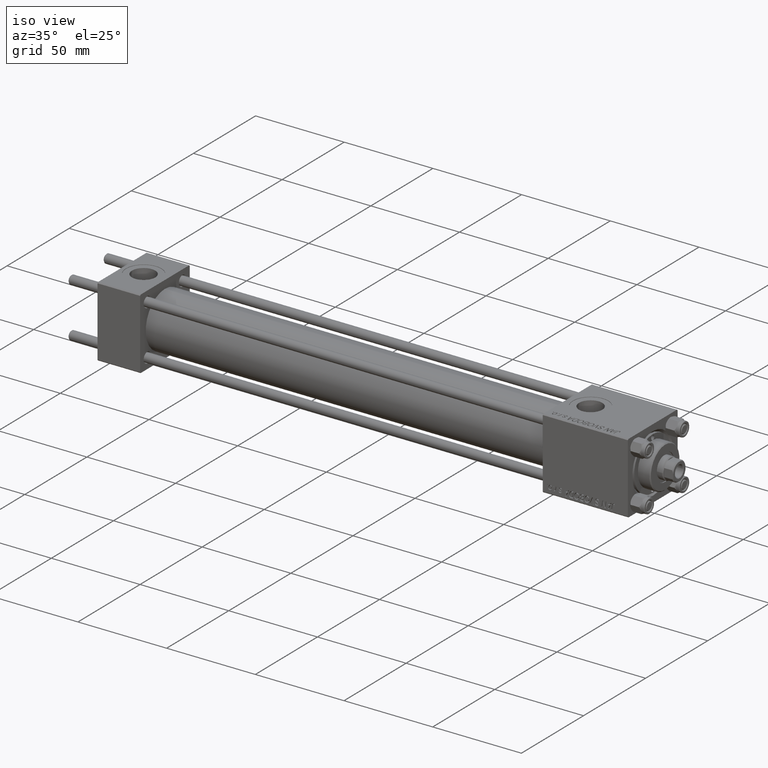
[diagram: clean part render]
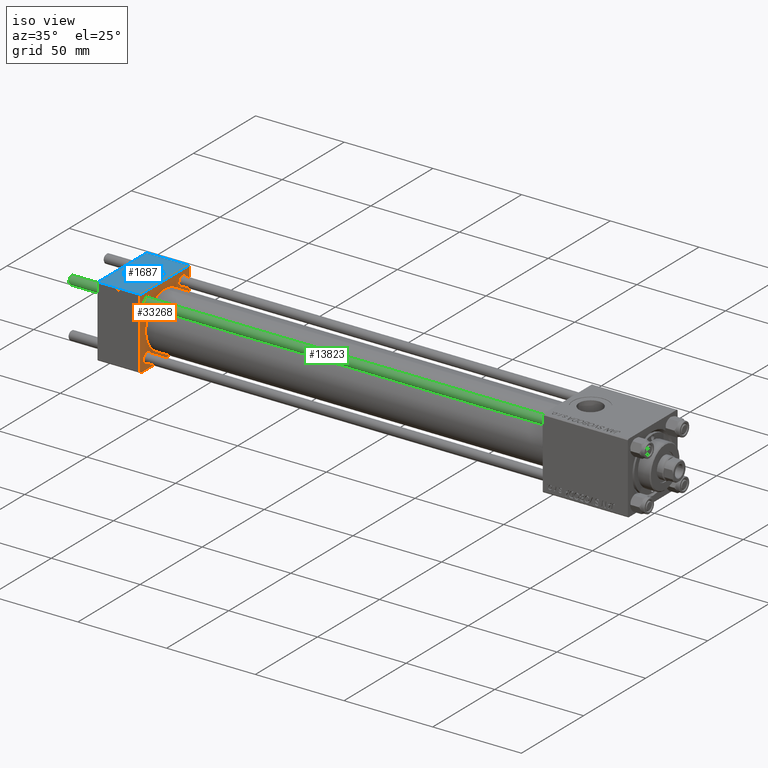
[diagram: same view with three faces highlighted in distinct colors, each labeled with its STEP entity id]
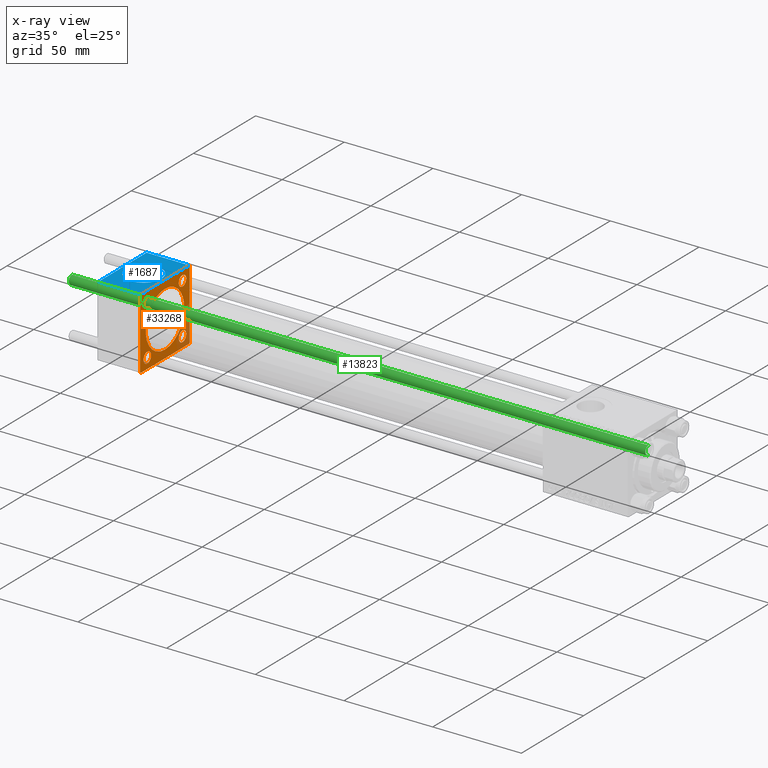
[diagram: x-ray of the same camera — body ghosted, the three highlighted faces saturated]
A machine part, iso view with three faces highlighted in distinct colors.
The next image is the same camera in x-ray (body ghosted, the three faces saturated) — at least one of them is partly hidden behind the body in this view.
Their STEP definitions:

[orange] entity #33268 — the highlighted planar face has unit normal (-1, 0, 0).
#960 = VERTEX_POINT ( 'NONE', #18807 ) ;
#989 = CARTESIAN_POINT ( 'NONE',  ( 24.00000000000000000, -14.14999999999999503, 17.15000000000008740 ) ) ;
#1058 = EDGE_CURVE ( 'NONE', #48217, #2595, #15009, .T. ) ;
#1263 = CARTESIAN_POINT ( 'NONE',  ( 24.00000000000000000, -14.14999999999999503, -14.15000000000000391 ) ) ;
#1504 = ORIENTED_EDGE ( 'NONE', *, *, #5475, .T. ) ;
#1520 = ORIENTED_EDGE ( 'NONE', *, *, #27999, .F. ) ;
#1533 = VERTEX_POINT ( 'NONE', #44206 ) ;
#1611 = CIRCLE ( 'NONE', #2422, 3.000000000000059952 ) ;
#1627 = CARTESIAN_POINT ( 'NONE',  ( 24.00000000000000000, -20.00000000000000355, 19.49999999999998224 ) ) ;
#1910 = VERTEX_POINT ( 'NONE', #20168 ) ;
#2059 = CARTESIAN_POINT ( 'NONE',  ( 23.99999999999999289, 0.000000000000000000, 15.50000000000000000 ) ) ;
#2181 = CARTESIAN_POINT ( 'NONE',  ( 24.00000000000000000, 19.50000000000000000, 20.00000000000000000 ) ) ;
#2352 = CIRCLE ( 'NONE', #41074, 3.000000000000084377 ) ;
#2395 = EDGE_CURVE ( 'NONE', #16699, #1533, #13733, .T. ) ;
#2422 = AXIS2_PLACEMENT_3D ( 'NONE', #11645, #42715, #43210 ) ;
#2595 = VERTEX_POINT ( 'NONE', #36316 ) ;
#3125 = CARTESIAN_POINT ( 'NONE',  ( 24.00000000000000000, 19.50000000000000000, 20.00000000000000000 ) ) ;
#3175 = AXIS2_PLACEMENT_3D ( 'NONE', #23337, #41785, #46066 ) ;
#3371 = DIRECTION ( 'NONE',  ( 0.000000000000000000, 0.000000000000000000, 1.000000000000000000 ) ) ;
#3982 = CARTESIAN_POINT ( 'NONE',  ( 24.00000000000000000, -20.00000000000000355, 19.99999999999998934 ) ) ;
#4370 = CARTESIAN_POINT ( 'NONE',  ( 24.00000000000000000, -20.00000000000000355, 19.49999999999998224 ) ) ;
#4435 = ORIENTED_EDGE ( 'NONE', *, *, #38975, .F. ) ;
#4995 = EDGE_LOOP ( 'NONE', ( #18812, #40933 ) ) ;
#5025 = CARTESIAN_POINT ( 'NONE',  ( 24.00000000000000000, -14.14999999999999503, 14.15000000000000391 ) ) ;
#5130 = ORIENTED_EDGE ( 'NONE', *, *, #17847, .T. ) ;
#5475 = EDGE_CURVE ( 'NONE', #13818, #14778, #23338, .T. ) ;
#5774 = EDGE_CURVE ( 'NONE', #1533, #16699, #1611, .T. ) ;
#5798 = DIRECTION ( 'NONE',  ( -1.000000000000000000, -0.000000000000000000, -0.000000000000000000 ) ) ;
#7448 = DIRECTION ( 'NONE',  ( 0.000000000000000000, 0.000000000000000000, 1.000000000000000000 ) ) ;
#7823 = FACE_BOUND ( 'NONE', #27897, .T. ) ;
#8228 = VECTOR ( 'NONE', #14100, 1000.000000000000000 ) ;
#8294 = DIRECTION ( 'NONE',  ( 0.000000000000000000, -1.000000000000000000, -2.602085213965210149E-16 ) ) ;
#8366 = AXIS2_PLACEMENT_3D ( 'NONE', #45846, #45349, #7448 ) ;
#8536 = LINE ( 'NONE', #46702, #18203 ) ;
#8733 = CARTESIAN_POINT ( 'NONE',  ( 24.00000000000000000, 20.00000000000000000, 20.00000000000000000 ) ) ;
#8767 = ORIENTED_EDGE ( 'NONE', *, *, #42547, .T. ) ;
#8823 = DIRECTION ( 'NONE',  ( -1.000000000000000000, -0.000000000000000000, -0.000000000000000000 ) ) ;
#9278 = LINE ( 'NONE', #36318, #28826 ) ;
#9615 = VERTEX_POINT ( 'NONE', #24837 ) ;
#10064 = CARTESIAN_POINT ( 'NONE',  ( 24.00000000000000000, 20.00000000000000000, -19.50000000000002132 ) ) ;
#10149 = VERTEX_POINT ( 'NONE', #989 ) ;
#10159 = ORIENTED_EDGE ( 'NONE', *, *, #1058, .T. ) ;
#10874 = FACE_BOUND ( 'NONE', #4995, .T. ) ;
#11124 = EDGE_CURVE ( 'NONE', #31600, #38091, #25233, .T. ) ;
#11217 = ORIENTED_EDGE ( 'NONE', *, *, #42232, .T. ) ;
#11645 = CARTESIAN_POINT ( 'NONE',  ( 24.00000000000000000, 14.14999999999999858, 14.15000000000000036 ) ) ;
#12724 = CIRCLE ( 'NONE', #19200, 15.50000000000000000 ) ;
#12798 = CARTESIAN_POINT ( 'NONE',  ( 24.00000000000000000, 14.14999999999999858, -14.15000000000000036 ) ) ;
#13590 = VERTEX_POINT ( 'NONE', #2181 ) ;
#13654 = CARTESIAN_POINT ( 'NONE',  ( 24.00000000000000000, -14.14999999999999503, 14.15000000000000391 ) ) ;
#13733 = CIRCLE ( 'NONE', #41991, 3.000000000000059952 ) ;
#13818 = VERTEX_POINT ( 'NONE', #45485 ) ;
#14100 = DIRECTION ( 'NONE',  ( -0.000000000000000000, 0.7071067811865524577, 0.7071067811865426878 ) ) ;
#14147 = ORIENTED_EDGE ( 'NONE', *, *, #36417, .T. ) ;
#14778 = VERTEX_POINT ( 'NONE', #1627 ) ;
#14812 = ORIENTED_EDGE ( 'NONE', *, *, #5774, .T. ) ;
#15009 = LINE ( 'NONE', #30675, #15139 ) ;
#15139 = VECTOR ( 'NONE', #30421, 1000.000000000000000 ) ;
#15207 = CIRCLE ( 'NONE', #44226, 3.000000000000084377 ) ;
#15641 = CIRCLE ( 'NONE', #8366, 15.50000000000000000 ) ;
#15843 = LINE ( 'NONE', #3982, #18858 ) ;
#15954 = EDGE_CURVE ( 'NONE', #48958, #21965, #15641, .T. ) ;
#16568 = CARTESIAN_POINT ( 'NONE',  ( 23.99999999999999289, 0.000000000000000000, 0.000000000000000000 ) ) ;
#16699 = VERTEX_POINT ( 'NONE', #27770 ) ;
#17816 = DIRECTION ( 'NONE',  ( 1.000000000000000000, 0.000000000000000000, 0.000000000000000000 ) ) ;
#17847 = EDGE_CURVE ( 'NONE', #14778, #48217, #15843, .T. ) ;
#17981 = CARTESIAN_POINT ( 'NONE',  ( 24.00000000000000000, 20.00000000000000000, 19.49999999999999289 ) ) ;
#18203 = VECTOR ( 'NONE', #8294, 1000.000000000000000 ) ;
#18452 = DIRECTION ( 'NONE',  ( -1.000000000000000000, -0.000000000000000000, -0.000000000000000000 ) ) ;
#18682 = EDGE_CURVE ( 'NONE', #26716, #38091, #31730, .T. ) ;
#18807 = CARTESIAN_POINT ( 'NONE',  ( 24.00000000000000000, -14.14999999999999503, 11.14999999999992042 ) ) ;
#18812 = ORIENTED_EDGE ( 'NONE', *, *, #25133, .T. ) ;
#18858 = VECTOR ( 'NONE', #34303, 1000.000000000000000 ) ;
#19200 = AXIS2_PLACEMENT_3D ( 'NONE', #16568, #17816, #44336 ) ;
#19937 = EDGE_CURVE ( 'NONE', #1910, #27167, #38266, .T. ) ;
#20168 = CARTESIAN_POINT ( 'NONE',  ( 24.00000000000000000, 14.14999999999999858, -11.14999999999994351 ) ) ;
#20437 = DIRECTION ( 'NONE',  ( -1.000000000000000000, -0.000000000000000000, -0.000000000000000000 ) ) ;
#20949 = CIRCLE ( 'NONE', #3175, 3.000000000000084377 ) ;
#21212 = DIRECTION ( 'NONE',  ( 0.000000000000000000, 0.000000000000000000, 1.000000000000000000 ) ) ;
#21965 = VERTEX_POINT ( 'NONE', #30920 ) ;
#22260 = DIRECTION ( 'NONE',  ( -1.000000000000000000, 0.000000000000000000, -0.000000000000000000 ) ) ;
#22450 = EDGE_LOOP ( 'NONE', ( #26909, #14812 ) ) ;
#22511 = FACE_BOUND ( 'NONE', #37964, .T. ) ;
#22522 = CARTESIAN_POINT ( 'NONE',  ( 24.00000000000000000, -14.14999999999999503, -11.14999999999992042 ) ) ;
#22931 = AXIS2_PLACEMENT_3D ( 'NONE', #48334, #45794, #3371 ) ;
#23008 = FACE_BOUND ( 'NONE', #34772, .T. ) ;
#23256 = FACE_OUTER_BOUND ( 'NONE', #48143, .T. ) ;
#23337 = CARTESIAN_POINT ( 'NONE',  ( 24.00000000000000000, -14.14999999999999503, -14.15000000000000391 ) ) ;
#23338 = LINE ( 'NONE', #4370, #28231 ) ;
#23421 = EDGE_CURVE ( 'NONE', #13590, #13818, #8536, .T. ) ;
#24008 = DIRECTION ( 'NONE',  ( 0.000000000000000000, 0.000000000000000000, 1.000000000000000000 ) ) ;
#24179 = DIRECTION ( 'NONE',  ( 0.000000000000000000, 0.000000000000000000, 1.000000000000000000 ) ) ;
#24837 = CARTESIAN_POINT ( 'NONE',  ( 24.00000000000000000, -14.14999999999999503, -17.15000000000008740 ) ) ;
#25013 = CARTESIAN_POINT ( 'NONE',  ( 24.00000000000000000, 14.14999999999999858, 14.15000000000000036 ) ) ;
#25133 = EDGE_CURVE ( 'NONE', #27167, #1910, #48906, .T. ) ;
#25233 = LINE ( 'NONE', #10064, #8228 ) ;
#26506 = CARTESIAN_POINT ( 'NONE',  ( 24.00000000000000000, 14.14999999999999858, -17.15000000000006253 ) ) ;
#26555 = PLANE ( 'NONE',  #39174 ) ;
#26716 = VERTEX_POINT ( 'NONE', #17981 ) ;
#26909 = ORIENTED_EDGE ( 'NONE', *, *, #2395, .T. ) ;
#27167 = VERTEX_POINT ( 'NONE', #26506 ) ;
#27770 = CARTESIAN_POINT ( 'NONE',  ( 24.00000000000000000, 14.14999999999999858, 11.14999999999994351 ) ) ;
#27897 = EDGE_LOOP ( 'NONE', ( #40315, #4435 ) ) ;
#27999 = EDGE_CURVE ( 'NONE', #31600, #2595, #9278, .T. ) ;
#28201 = DIRECTION ( 'NONE',  ( 0.000000000000000000, 0.000000000000000000, -1.000000000000000000 ) ) ;
#28231 = VECTOR ( 'NONE', #31646, 1000.000000000000114 ) ;
#28826 = VECTOR ( 'NONE', #35562, 1000.000000000000000 ) ;
#29977 = EDGE_CURVE ( 'NONE', #10149, #960, #15207, .T. ) ;
#30146 = CARTESIAN_POINT ( 'NONE',  ( 24.00000000000000000, 19.50000000000000711, -20.00000000000000711 ) ) ;
#30334 = CARTESIAN_POINT ( 'NONE',  ( 24.00000000000000000, 0.000000000000000000, 0.000000000000000000 ) ) ;
#30421 = DIRECTION ( 'NONE',  ( 0.000000000000000000, 0.7071067811865401342, -0.7071067811865549002 ) ) ;
#30675 = CARTESIAN_POINT ( 'NONE',  ( 24.00000000000000000, -19.50000000000000711, -20.00000000000000000 ) ) ;
#30920 = CARTESIAN_POINT ( 'NONE',  ( 23.99999999999999289, 1.898202538678397163E-15, -15.50000000000000000 ) ) ;
#31173 = CARTESIAN_POINT ( 'NONE',  ( 24.00000000000000000, -20.00000000000000000, -19.49999999999999645 ) ) ;
#31600 = VERTEX_POINT ( 'NONE', #30146 ) ;
#31646 = DIRECTION ( 'NONE',  ( -0.000000000000000000, -0.7071067811865500152, -0.7071067811865451302 ) ) ;
#31730 = LINE ( 'NONE', #8733, #38229 ) ;
#31914 = VERTEX_POINT ( 'NONE', #22522 ) ;
#33034 = ORIENTED_EDGE ( 'NONE', *, *, #11124, .T. ) ;
#33268 = ADVANCED_FACE ( 'NONE', ( #23008, #10874, #22511, #37920, #7823, #23256 ), #26555, .F. ) ;
#34303 = DIRECTION ( 'NONE',  ( 0.000000000000000000, 8.673617379884036705E-17, -1.000000000000000000 ) ) ;
#34560 = ORIENTED_EDGE ( 'NONE', *, *, #23421, .T. ) ;
#34624 = VECTOR ( 'NONE', #43507, 999.9999999999998863 ) ;
#34772 = EDGE_LOOP ( 'NONE', ( #38780, #8767 ) ) ;
#35562 = DIRECTION ( 'NONE',  ( 0.000000000000000000, -1.000000000000000000, 1.734723475976807094E-16 ) ) ;
#36316 = CARTESIAN_POINT ( 'NONE',  ( 24.00000000000000000, -19.50000000000000711, -20.00000000000000000 ) ) ;
#36318 = CARTESIAN_POINT ( 'NONE',  ( 24.00000000000000000, 20.00000000000000000, -20.00000000000000711 ) ) ;
#36417 = EDGE_CURVE ( 'NONE', #960, #10149, #36857, .T. ) ;
#36594 = DIRECTION ( 'NONE',  ( 0.000000000000000000, 0.000000000000000000, 1.000000000000000000 ) ) ;
#36857 = CIRCLE ( 'NONE', #44140, 3.000000000000084377 ) ;
#37599 = AXIS2_PLACEMENT_3D ( 'NONE', #12798, #46904, #24179 ) ;
#37665 = DIRECTION ( 'NONE',  ( -0.000000000000000000, 0.000000000000000000, 1.000000000000000000 ) ) ;
#37731 = LINE ( 'NONE', #3125, #34624 ) ;
#37920 = FACE_BOUND ( 'NONE', #22450, .T. ) ;
#37964 = EDGE_LOOP ( 'NONE', ( #14147, #45786 ) ) ;
#38091 = VERTEX_POINT ( 'NONE', #38200 ) ;
#38200 = CARTESIAN_POINT ( 'NONE',  ( 24.00000000000000000, 20.00000000000000000, -19.50000000000002132 ) ) ;
#38229 = VECTOR ( 'NONE', #28201, 1000.000000000000000 ) ;
#38266 = CIRCLE ( 'NONE', #22931, 3.000000000000059952 ) ;
#38780 = ORIENTED_EDGE ( 'NONE', *, *, #47210, .T. ) ;
#38975 = EDGE_CURVE ( 'NONE', #21965, #48958, #12724, .T. ) ;
#39174 = AXIS2_PLACEMENT_3D ( 'NONE', #30334, #22260, #37665 ) ;
#40315 = ORIENTED_EDGE ( 'NONE', *, *, #15954, .F. ) ;
#40933 = ORIENTED_EDGE ( 'NONE', *, *, #19937, .T. ) ;
#41074 = AXIS2_PLACEMENT_3D ( 'NONE', #1263, #8823, #24008 ) ;
#41460 = ORIENTED_EDGE ( 'NONE', *, *, #18682, .F. ) ;
#41785 = DIRECTION ( 'NONE',  ( -1.000000000000000000, -0.000000000000000000, -0.000000000000000000 ) ) ;
#41991 = AXIS2_PLACEMENT_3D ( 'NONE', #25013, #5798, #21212 ) ;
#42232 = EDGE_CURVE ( 'NONE', #26716, #13590, #37731, .T. ) ;
#42547 = EDGE_CURVE ( 'NONE', #31914, #9615, #2352, .T. ) ;
#42715 = DIRECTION ( 'NONE',  ( -1.000000000000000000, -0.000000000000000000, -0.000000000000000000 ) ) ;
#43210 = DIRECTION ( 'NONE',  ( 0.000000000000000000, 0.000000000000000000, 1.000000000000000000 ) ) ;
#43507 = DIRECTION ( 'NONE',  ( 0.000000000000000000, -0.7071067811865425767, 0.7071067811865525687 ) ) ;
#44140 = AXIS2_PLACEMENT_3D ( 'NONE', #13654, #18452, #44222 ) ;
#44206 = CARTESIAN_POINT ( 'NONE',  ( 24.00000000000000000, 14.14999999999999858, 17.15000000000006253 ) ) ;
#44222 = DIRECTION ( 'NONE',  ( 0.000000000000000000, 0.000000000000000000, 1.000000000000000000 ) ) ;
#44226 = AXIS2_PLACEMENT_3D ( 'NONE', #5025, #20437, #36594 ) ;
#44336 = DIRECTION ( 'NONE',  ( 0.000000000000000000, 0.000000000000000000, 1.000000000000000000 ) ) ;
#45349 = DIRECTION ( 'NONE',  ( 1.000000000000000000, 0.000000000000000000, 0.000000000000000000 ) ) ;
#45485 = CARTESIAN_POINT ( 'NONE',  ( 24.00000000000000000, -19.49999999999999289, 19.99999999999998934 ) ) ;
#45786 = ORIENTED_EDGE ( 'NONE', *, *, #29977, .T. ) ;
#45794 = DIRECTION ( 'NONE',  ( -1.000000000000000000, -0.000000000000000000, -0.000000000000000000 ) ) ;
#45846 = CARTESIAN_POINT ( 'NONE',  ( 23.99999999999999289, 0.000000000000000000, 0.000000000000000000 ) ) ;
#46066 = DIRECTION ( 'NONE',  ( 0.000000000000000000, 0.000000000000000000, 1.000000000000000000 ) ) ;
#46702 = CARTESIAN_POINT ( 'NONE',  ( 24.00000000000000000, 20.00000000000000000, 20.00000000000000000 ) ) ;
#46904 = DIRECTION ( 'NONE',  ( -1.000000000000000000, -0.000000000000000000, -0.000000000000000000 ) ) ;
#47210 = EDGE_CURVE ( 'NONE', #9615, #31914, #20949, .T. ) ;
#48143 = EDGE_LOOP ( 'NONE', ( #1520, #33034, #41460, #11217, #34560, #1504, #5130, #10159 ) ) ;
#48217 = VERTEX_POINT ( 'NONE', #31173 ) ;
#48334 = CARTESIAN_POINT ( 'NONE',  ( 24.00000000000000000, 14.14999999999999858, -14.15000000000000036 ) ) ;
#48906 = CIRCLE ( 'NONE', #37599, 3.000000000000059952 ) ;
#48958 = VERTEX_POINT ( 'NONE', #2059 ) ;

[blue] entity #1687 — the highlighted planar face has unit normal (0, 0, -1).
#415 = CARTESIAN_POINT ( 'NONE',  ( 0.000000000000000000, -19.49999999999999289, 19.99999999999998934 ) ) ;
#434 = CARTESIAN_POINT ( 'NONE',  ( 12.00000000000000000, 1.540743955509788682E-30, 19.99999999999999645 ) ) ;
#1162 = EDGE_CURVE ( 'NONE', #35044, #7055, #32071, .T. ) ;
#1687 = ADVANCED_FACE ( 'NONE', ( #41412, #25520 ), #37374, .F. ) ;
#2181 = CARTESIAN_POINT ( 'NONE',  ( 24.00000000000000000, 19.50000000000000000, 20.00000000000000000 ) ) ;
#2398 = ORIENTED_EDGE ( 'NONE', *, *, #17293, .T. ) ;
#2576 = ORIENTED_EDGE ( 'NONE', *, *, #48693, .T. ) ;
#4619 = DIRECTION ( 'NONE',  ( 0.000000000000000000, 0.000000000000000000, 1.000000000000000000 ) ) ;
#6683 = LINE ( 'NONE', #14269, #15740 ) ;
#7055 = VERTEX_POINT ( 'NONE', #14838 ) ;
#7663 = DIRECTION ( 'NONE',  ( 1.000000000000000000, 0.000000000000000000, 0.000000000000000000 ) ) ;
#8294 = DIRECTION ( 'NONE',  ( 0.000000000000000000, -1.000000000000000000, -2.602085213965210149E-16 ) ) ;
#8536 = LINE ( 'NONE', #46702, #18203 ) ;
#9274 = VERTEX_POINT ( 'NONE', #415 ) ;
#10840 = DIRECTION ( 'NONE',  ( 0.000000000000000000, 2.602085213965210149E-16, -1.000000000000000000 ) ) ;
#11098 = CARTESIAN_POINT ( 'NONE',  ( 24.00000000000000000, 20.00000000000000000, 20.00000000000000000 ) ) ;
#11195 = LINE ( 'NONE', #26116, #40350 ) ;
#12680 = ORIENTED_EDGE ( 'NONE', *, *, #1162, .F. ) ;
#13590 = VERTEX_POINT ( 'NONE', #2181 ) ;
#13818 = VERTEX_POINT ( 'NONE', #45485 ) ;
#14269 = CARTESIAN_POINT ( 'NONE',  ( 0.000000000000000000, 20.00000000000000000, 20.00000000000000000 ) ) ;
#14389 = CIRCLE ( 'NONE', #18439, 9.999999999999998224 ) ;
#14838 = CARTESIAN_POINT ( 'NONE',  ( 22.00000000000000000, 1.540743955509788682E-30, 19.99999999999999645 ) ) ;
#14987 = DIRECTION ( 'NONE',  ( -1.000000000000000000, 0.000000000000000000, 0.000000000000000000 ) ) ;
#15740 = VECTOR ( 'NONE', #29936, 1000.000000000000000 ) ;
#15834 = DIRECTION ( 'NONE',  ( 0.000000000000000000, 0.000000000000000000, 1.000000000000000000 ) ) ;
#16516 = ORIENTED_EDGE ( 'NONE', *, *, #40644, .F. ) ;
#17293 = EDGE_CURVE ( 'NONE', #9274, #13818, #24059, .T. ) ;
#17548 = AXIS2_PLACEMENT_3D ( 'NONE', #31402, #4619, #7663 ) ;
#18203 = VECTOR ( 'NONE', #8294, 1000.000000000000000 ) ;
#18439 = AXIS2_PLACEMENT_3D ( 'NONE', #434, #15834, #26735 ) ;
#19793 = CARTESIAN_POINT ( 'NONE',  ( 2.000000000000003553, 1.224646799147354440E-15, 19.99999999999999645 ) ) ;
#20395 = CARTESIAN_POINT ( 'NONE',  ( 0.000000000000000000, 19.50000000000000000, 20.00000000000000000 ) ) ;
#22676 = EDGE_CURVE ( 'NONE', #43190, #9274, #6683, .T. ) ;
#23421 = EDGE_CURVE ( 'NONE', #13590, #13818, #8536, .T. ) ;
#23770 = VECTOR ( 'NONE', #31380, 1000.000000000000000 ) ;
#24059 = LINE ( 'NONE', #39214, #23770 ) ;
#25520 = FACE_OUTER_BOUND ( 'NONE', #49493, .T. ) ;
#26116 = CARTESIAN_POINT ( 'NONE',  ( 0.000000000000000000, 19.50000000000000000, 20.00000000000000000 ) ) ;
#26735 = DIRECTION ( 'NONE',  ( 1.000000000000000000, 0.000000000000000000, 0.000000000000000000 ) ) ;
#29936 = DIRECTION ( 'NONE',  ( 0.000000000000000000, -1.000000000000000000, -2.602085213965210149E-16 ) ) ;
#31235 = ORIENTED_EDGE ( 'NONE', *, *, #22676, .T. ) ;
#31380 = DIRECTION ( 'NONE',  ( 1.000000000000000000, 0.000000000000000000, 0.000000000000000000 ) ) ;
#31402 = CARTESIAN_POINT ( 'NONE',  ( 12.00000000000000000, 1.540743955509788682E-30, 19.99999999999999645 ) ) ;
#32071 = CIRCLE ( 'NONE', #17548, 9.999999999999998224 ) ;
#32629 = EDGE_LOOP ( 'NONE', ( #16516, #12680 ) ) ;
#32895 = AXIS2_PLACEMENT_3D ( 'NONE', #11098, #10840, #41919 ) ;
#35044 = VERTEX_POINT ( 'NONE', #19793 ) ;
#37374 = PLANE ( 'NONE',  #32895 ) ;
#39214 = CARTESIAN_POINT ( 'NONE',  ( 24.00000000000000000, -19.49999999999999289, 19.99999999999998934 ) ) ;
#40350 = VECTOR ( 'NONE', #14987, 1000.000000000000000 ) ;
#40644 = EDGE_CURVE ( 'NONE', #7055, #35044, #14389, .T. ) ;
#41412 = FACE_BOUND ( 'NONE', #32629, .T. ) ;
#41919 = DIRECTION ( 'NONE',  ( 0.000000000000000000, 1.000000000000000000, 2.602085213965210149E-16 ) ) ;
#43190 = VERTEX_POINT ( 'NONE', #20395 ) ;
#44814 = ORIENTED_EDGE ( 'NONE', *, *, #23421, .F. ) ;
#45485 = CARTESIAN_POINT ( 'NONE',  ( 24.00000000000000000, -19.49999999999999289, 19.99999999999998934 ) ) ;
#46702 = CARTESIAN_POINT ( 'NONE',  ( 24.00000000000000000, 20.00000000000000000, 20.00000000000000000 ) ) ;
#48693 = EDGE_CURVE ( 'NONE', #13590, #43190, #11195, .T. ) ;
#49493 = EDGE_LOOP ( 'NONE', ( #31235, #2398, #44814, #2576 ) ) ;

[green] entity #13823 — the highlighted cylindrical surface (edge-blend (fillet) strip) has radius 2.5 mm, axis along (1, -0, 0).
#27 = CARTESIAN_POINT ( 'NONE',  ( 0.000000000000000000, 0.000000000000000000, 326.0000000000000000 ) ) ;
#1253 = CIRCLE ( 'NONE', #27856, 2.500000000000000000 ) ;
#2735 = EDGE_CURVE ( 'NONE', #37084, #43225, #11320, .T. ) ;
#3382 = LINE ( 'NONE', #25626, #12634 ) ;
#3662 = ORIENTED_EDGE ( 'NONE', *, *, #35606, .F. ) ;
#5645 = AXIS2_PLACEMENT_3D ( 'NONE', #11221, #5980, #38261 ) ;
#5980 = DIRECTION ( 'NONE',  ( 0.000000000000000000, 0.000000000000000000, -1.000000000000000000 ) ) ;
#7786 = VECTOR ( 'NONE', #27686, 1000.000000000000000 ) ;
#9785 = EDGE_LOOP ( 'NONE', ( #32160, #11732, #41149, #3662 ) ) ;
#10905 = DIRECTION ( 'NONE',  ( -0.000000000000000000, -0.000000000000000000, 1.000000000000000000 ) ) ;
#11221 = CARTESIAN_POINT ( 'NONE',  ( 0.000000000000000000, 0.000000000000000000, 325.5000000000000000 ) ) ;
#11320 = CIRCLE ( 'NONE', #5645, 2.500000000000000000 ) ;
#11732 = ORIENTED_EDGE ( 'NONE', *, *, #26496, .T. ) ;
#12634 = VECTOR ( 'NONE', #22839, 1000.000000000000000 ) ;
#13661 = CARTESIAN_POINT ( 'NONE',  ( -2.500000000000000000, 0.000000000000000000, 325.5000000000000000 ) ) ;
#13823 = ADVANCED_FACE ( 'NONE', ( #30086 ), #38674, .T. ) ;
#14927 = DIRECTION ( 'NONE',  ( -1.000000000000000000, 0.000000000000000000, 0.000000000000000000 ) ) ;
#15392 = VERTEX_POINT ( 'NONE', #27489 ) ;
#18995 = CARTESIAN_POINT ( 'NONE',  ( 0.000000000000000000, 0.000000000000000000, 0.4999999999999449329 ) ) ;
#22164 = EDGE_CURVE ( 'NONE', #15392, #29195, #1253, .T. ) ;
#22839 = DIRECTION ( 'NONE',  ( -0.000000000000000000, -0.000000000000000000, -1.000000000000000000 ) ) ;
#25626 = CARTESIAN_POINT ( 'NONE',  ( 2.500000000000000000, 3.061616997868383141E-16, 326.0000000000000000 ) ) ;
#26333 = DIRECTION ( 'NONE',  ( 1.000000000000000000, 0.000000000000000000, 0.000000000000000000 ) ) ;
#26496 = EDGE_CURVE ( 'NONE', #43225, #15392, #3382, .T. ) ;
#27489 = CARTESIAN_POINT ( 'NONE',  ( 2.500000000000000000, 3.061616997868383141E-16, 0.4999999999999449329 ) ) ;
#27680 = AXIS2_PLACEMENT_3D ( 'NONE', #27, #38419, #14927 ) ;
#27686 = DIRECTION ( 'NONE',  ( -0.000000000000000000, -0.000000000000000000, -1.000000000000000000 ) ) ;
#27856 = AXIS2_PLACEMENT_3D ( 'NONE', #18995, #10905, #26333 ) ;
#29195 = VERTEX_POINT ( 'NONE', #30495 ) ;
#30086 = FACE_OUTER_BOUND ( 'NONE', #9785, .T. ) ;
#30495 = CARTESIAN_POINT ( 'NONE',  ( -2.500000000000000000, 0.000000000000000000, 0.4999999999999449329 ) ) ;
#31482 = LINE ( 'NONE', #39304, #7786 ) ;
#32160 = ORIENTED_EDGE ( 'NONE', *, *, #2735, .T. ) ;
#35606 = EDGE_CURVE ( 'NONE', #37084, #29195, #31482, .T. ) ;
#37084 = VERTEX_POINT ( 'NONE', #13661 ) ;
#38261 = DIRECTION ( 'NONE',  ( 1.000000000000000000, 0.000000000000000000, 0.000000000000000000 ) ) ;
#38419 = DIRECTION ( 'NONE',  ( -0.000000000000000000, -0.000000000000000000, -1.000000000000000000 ) ) ;
#38674 = CYLINDRICAL_SURFACE ( 'NONE', #27680, 2.500000000000000000 ) ;
#39304 = CARTESIAN_POINT ( 'NONE',  ( -2.500000000000000000, 0.000000000000000000, 326.0000000000000000 ) ) ;
#41149 = ORIENTED_EDGE ( 'NONE', *, *, #22164, .T. ) ;
#43225 = VERTEX_POINT ( 'NONE', #48660 ) ;
#48660 = CARTESIAN_POINT ( 'NONE',  ( 2.500000000000000000, 3.061616997868383141E-16, 325.5000000000000000 ) ) ;